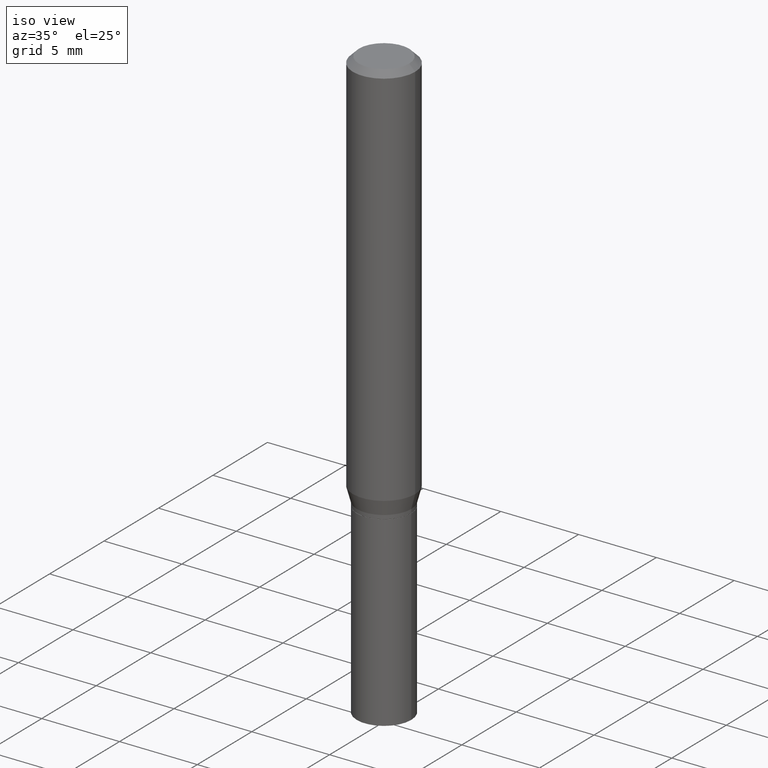
[diagram: clean part render]
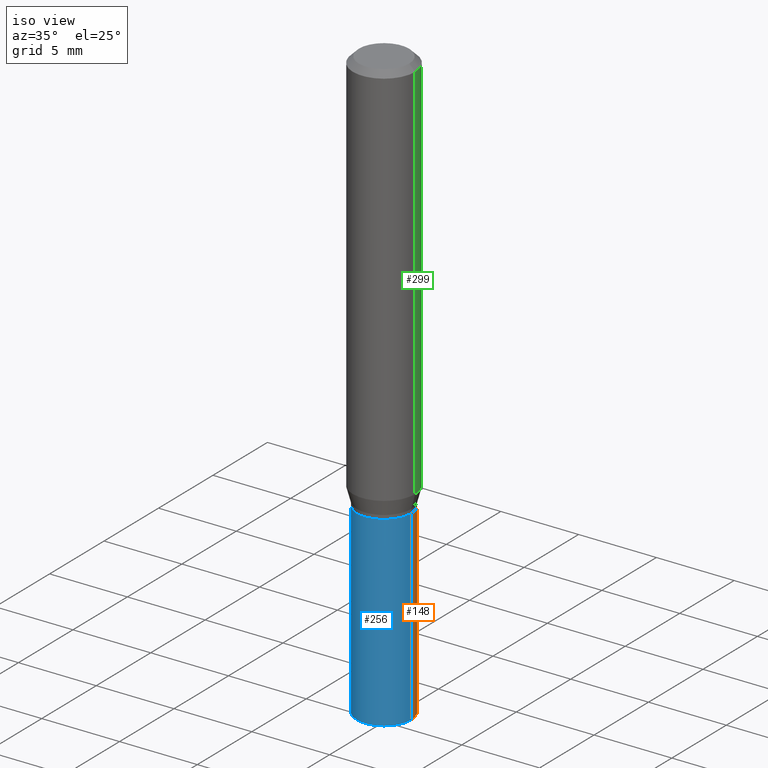
[diagram: same view with three faces highlighted in distinct colors, each labeled with its STEP entity id]
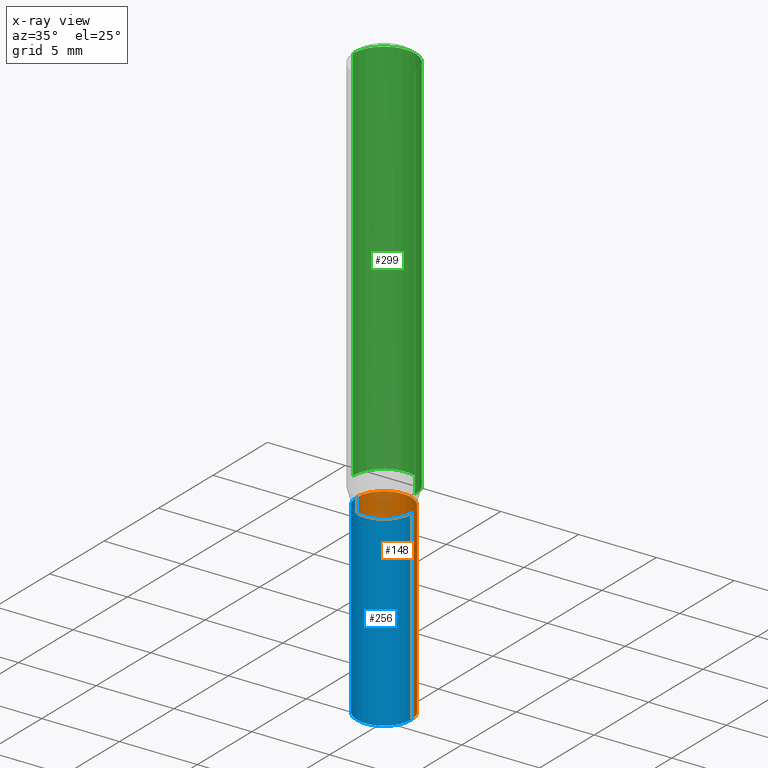
[diagram: x-ray of the same camera — body ghosted, the three highlighted faces saturated]
A machine part, iso view with three faces highlighted in distinct colors.
The next image is the same camera in x-ray (body ghosted, the three faces saturated) — at least one of them is partly hidden behind the body in this view.
Their STEP definitions:

[orange] entity #148 — the highlighted cylindrical surface (edge-blend (fillet) strip) has radius 1.7501 mm, axis along (-0, 0, 1).
#8 = VECTOR ( 'NONE', #230, 39.37007874015748143 ) ;
#9 = DIRECTION ( 'NONE',  ( 1.000000000000000000, -6.982962677686265922E-15, 0.000000000000000000 ) ) ;
#11 = ORIENTED_EDGE ( 'NONE', *, *, #125, .T. ) ;
#24 = CARTESIAN_POINT ( 'NONE',  ( 2.512963745235846570E-29, -3.587846223795216918E-15, -1.027600000000000069 ) ) ;
#47 = EDGE_CURVE ( 'NONE', #321, #249, #325, .T. ) ;
#51 = DIRECTION ( 'NONE',  ( 1.000000000000000000, -6.982962677686265922E-15, 0.000000000000000000 ) ) ;
#52 = EDGE_CURVE ( 'NONE', #321, #301, #329, .T. ) ;
#55 = DIRECTION ( 'NONE',  ( -2.445468806185136597E-29, 3.491481338843145583E-15, 1.000000000000000000 ) ) ;
#79 = CIRCLE ( 'NONE', #461, 0.06890000000000000291 ) ;
#83 = EDGE_CURVE ( 'NONE', #301, #261, #79, .T. ) ;
#100 = ORIENTED_EDGE ( 'NONE', *, *, #83, .F. ) ;
#109 = CARTESIAN_POINT ( 'NONE',  ( -0.06890000000000000291, -3.922970171091258795E-15, -1.027600000000000069 ) ) ;
#120 = CARTESIAN_POINT ( 'NONE',  ( 0.06890000000000000291, -4.811261284925838371E-16, 3.359685798523399969E-30 ) ) ;
#125 = EDGE_CURVE ( 'NONE', #249, #261, #389, .T. ) ;
#143 = ORIENTED_EDGE ( 'NONE', *, *, #52, .F. ) ;
#147 = VECTOR ( 'NONE', #270, 39.37007874015748143 ) ;
#148 = ADVANCED_FACE ( 'NONE', ( #197 ), #311, .T. ) ;
#197 = FACE_OUTER_BOUND ( 'NONE', #241, .T. ) ;
#203 = AXIS2_PLACEMENT_3D ( 'NONE', #290, #332, #9 ) ;
#226 = AXIS2_PLACEMENT_3D ( 'NONE', #349, #459, #268 ) ;
#230 = DIRECTION ( 'NONE',  ( -2.445468806185136877E-29, 3.491481338843145188E-15, 1.000000000000000000 ) ) ;
#241 = EDGE_LOOP ( 'NONE', ( #390, #11, #100, #143 ) ) ;
#249 = VERTEX_POINT ( 'NONE', #402 ) ;
#261 = VERTEX_POINT ( 'NONE', #109 ) ;
#268 = DIRECTION ( 'NONE',  ( 1.000000000000000000, -6.982962677686267499E-15, 4.876176775795935793E-29 ) ) ;
#270 = DIRECTION ( 'NONE',  ( -2.445468806185136877E-29, 3.491481338843145188E-15, 1.000000000000000000 ) ) ;
#290 = CARTESIAN_POINT ( 'NONE',  ( 3.668203209277704895E-29, -5.237222008264718177E-15, -1.500000000000000222 ) ) ;
#295 = CARTESIAN_POINT ( 'NONE',  ( 0.06890000000000000291, -4.068972352287800657E-15, -1.027600000000000069 ) ) ;
#301 = VERTEX_POINT ( 'NONE', #295 ) ;
#309 = CARTESIAN_POINT ( 'NONE',  ( -0.06890000000000000291, 4.895639449387090487E-16, -3.389146277185630017E-30 ) ) ;
#311 = CYLINDRICAL_SURFACE ( 'NONE', #226, 0.06890000000000000291 ) ;
#321 = VERTEX_POINT ( 'NONE', #404 ) ;
#325 = CIRCLE ( 'NONE', #203, 0.06890000000000000291 ) ;
#329 = LINE ( 'NONE', #120, #147 ) ;
#332 = DIRECTION ( 'NONE',  ( -2.445468806185136597E-29, 3.491481338843145583E-15, 1.000000000000000000 ) ) ;
#349 = CARTESIAN_POINT ( 'NONE',  ( 0.000000000000000000, 0.000000000000000000, 0.000000000000000000 ) ) ;
#389 = LINE ( 'NONE', #309, #8 ) ;
#390 = ORIENTED_EDGE ( 'NONE', *, *, #47, .T. ) ;
#402 = CARTESIAN_POINT ( 'NONE',  ( -0.06890000000000000291, -3.922970171091258795E-15, -1.500000000000000222 ) ) ;
#404 = CARTESIAN_POINT ( 'NONE',  ( 0.06890000000000000291, -5.718348136757302704E-15, -1.500000000000000222 ) ) ;
#459 = DIRECTION ( 'NONE',  ( -2.445468806185136597E-29, 3.491481338843145583E-15, 1.000000000000000000 ) ) ;
#461 = AXIS2_PLACEMENT_3D ( 'NONE', #24, #55, #51 ) ;

[blue] entity #256 — the highlighted cylindrical surface (edge-blend (fillet) strip) has radius 1.7501 mm, axis along (-0, 0, 1).
#8 = VECTOR ( 'NONE', #230, 39.37007874015748143 ) ;
#14 = DIRECTION ( 'NONE',  ( -2.445468806185136597E-29, 3.491481338843145583E-15, 1.000000000000000000 ) ) ;
#52 = EDGE_CURVE ( 'NONE', #321, #301, #329, .T. ) ;
#71 = CYLINDRICAL_SURFACE ( 'NONE', #98, 0.06890000000000000291 ) ;
#98 = AXIS2_PLACEMENT_3D ( 'NONE', #365, #145, #292 ) ;
#107 = AXIS2_PLACEMENT_3D ( 'NONE', #215, #14, #370 ) ;
#109 = CARTESIAN_POINT ( 'NONE',  ( -0.06890000000000000291, -3.922970171091258795E-15, -1.027600000000000069 ) ) ;
#120 = CARTESIAN_POINT ( 'NONE',  ( 0.06890000000000000291, -4.811261284925838371E-16, 3.359685798523399969E-30 ) ) ;
#125 = EDGE_CURVE ( 'NONE', #249, #261, #389, .T. ) ;
#145 = DIRECTION ( 'NONE',  ( -2.445468806185136597E-29, 3.491481338843145583E-15, 1.000000000000000000 ) ) ;
#147 = VECTOR ( 'NONE', #270, 39.37007874015748143 ) ;
#155 = CARTESIAN_POINT ( 'NONE',  ( 3.668203209277704895E-29, -5.237222008264718177E-15, -1.500000000000000222 ) ) ;
#161 = AXIS2_PLACEMENT_3D ( 'NONE', #155, #339, #449 ) ;
#187 = EDGE_LOOP ( 'NONE', ( #441, #205, #448, #424 ) ) ;
#205 = ORIENTED_EDGE ( 'NONE', *, *, #281, .T. ) ;
#210 = CIRCLE ( 'NONE', #107, 0.06890000000000000291 ) ;
#215 = CARTESIAN_POINT ( 'NONE',  ( 2.512963745235846570E-29, -3.587846223795216918E-15, -1.027600000000000069 ) ) ;
#230 = DIRECTION ( 'NONE',  ( -2.445468806185136877E-29, 3.491481338843145188E-15, 1.000000000000000000 ) ) ;
#249 = VERTEX_POINT ( 'NONE', #402 ) ;
#256 = ADVANCED_FACE ( 'NONE', ( #340 ), #71, .T. ) ;
#261 = VERTEX_POINT ( 'NONE', #109 ) ;
#270 = DIRECTION ( 'NONE',  ( -2.445468806185136877E-29, 3.491481338843145188E-15, 1.000000000000000000 ) ) ;
#281 = EDGE_CURVE ( 'NONE', #249, #321, #423, .T. ) ;
#292 = DIRECTION ( 'NONE',  ( 1.000000000000000000, -6.982962677686267499E-15, 4.876176775795935793E-29 ) ) ;
#295 = CARTESIAN_POINT ( 'NONE',  ( 0.06890000000000000291, -4.068972352287800657E-15, -1.027600000000000069 ) ) ;
#301 = VERTEX_POINT ( 'NONE', #295 ) ;
#309 = CARTESIAN_POINT ( 'NONE',  ( -0.06890000000000000291, 4.895639449387090487E-16, -3.389146277185630017E-30 ) ) ;
#321 = VERTEX_POINT ( 'NONE', #404 ) ;
#329 = LINE ( 'NONE', #120, #147 ) ;
#339 = DIRECTION ( 'NONE',  ( -2.445468806185136597E-29, 3.491481338843145583E-15, 1.000000000000000000 ) ) ;
#340 = FACE_OUTER_BOUND ( 'NONE', #187, .T. ) ;
#365 = CARTESIAN_POINT ( 'NONE',  ( 0.000000000000000000, 0.000000000000000000, 0.000000000000000000 ) ) ;
#370 = DIRECTION ( 'NONE',  ( 1.000000000000000000, -6.982962677686265922E-15, 0.000000000000000000 ) ) ;
#388 = EDGE_CURVE ( 'NONE', #261, #301, #210, .T. ) ;
#389 = LINE ( 'NONE', #309, #8 ) ;
#402 = CARTESIAN_POINT ( 'NONE',  ( -0.06890000000000000291, -3.922970171091258795E-15, -1.500000000000000222 ) ) ;
#404 = CARTESIAN_POINT ( 'NONE',  ( 0.06890000000000000291, -5.718348136757302704E-15, -1.500000000000000222 ) ) ;
#423 = CIRCLE ( 'NONE', #161, 0.06890000000000000291 ) ;
#424 = ORIENTED_EDGE ( 'NONE', *, *, #388, .F. ) ;
#441 = ORIENTED_EDGE ( 'NONE', *, *, #125, .F. ) ;
#448 = ORIENTED_EDGE ( 'NONE', *, *, #52, .T. ) ;
#449 = DIRECTION ( 'NONE',  ( 1.000000000000000000, -6.982962677686265922E-15, 0.000000000000000000 ) ) ;

[green] entity #299 — the highlighted cylindrical surface (partial cylindrical patch) has radius 2.0003 mm, axis along (-0, 0, 1).
#23 = CARTESIAN_POINT ( 'NONE',  ( -0.07875000000000001443, 5.595524044110789989E-16, -3.873661383575739193E-30 ) ) ;
#70 = CYLINDRICAL_SURFACE ( 'NONE', #360, 0.07875000000000001443 ) ;
#77 = DIRECTION ( 'NONE',  ( 1.000000000000000000, -6.982962677686265922E-15, 0.000000000000000000 ) ) ;
#89 = EDGE_CURVE ( 'NONE', #284, #406, #454, .T. ) ;
#92 = DIRECTION ( 'NONE',  ( -2.445468806185136877E-29, 3.491481338843145188E-15, 1.000000000000000000 ) ) ;
#108 = FACE_OUTER_BOUND ( 'NONE', #324, .T. ) ;
#119 = CARTESIAN_POINT ( 'NONE',  ( 0.07875000000000001443, -3.974490421634703940E-15, -0.9808392995454470187 ) ) ;
#126 = CARTESIAN_POINT ( 'NONE',  ( 0.07875000000000001443, -5.499083108677936415E-16, 3.839989210939299717E-30 ) ) ;
#140 = ORIENTED_EDGE ( 'NONE', *, *, #453, .T. ) ;
#150 = CARTESIAN_POINT ( 'NONE',  ( -0.07875000000000000056, -1.178924761013699443E-15, -0.01499999999999999944 ) ) ;
#151 = ORIENTED_EDGE ( 'NONE', *, *, #89, .T. ) ;
#157 = DIRECTION ( 'NONE',  ( -2.445468806185136877E-29, 3.491481338843145188E-15, 1.000000000000000000 ) ) ;
#178 = CARTESIAN_POINT ( 'NONE',  ( 3.668203209277705088E-31, -5.237222008264718399E-17, -0.01499999999999999944 ) ) ;
#184 = DIRECTION ( 'NONE',  ( -2.445468806185136597E-29, 3.491481338843145583E-15, 1.000000000000000000 ) ) ;
#202 = ORIENTED_EDGE ( 'NONE', *, *, #442, .F. ) ;
#218 = DIRECTION ( 'NONE',  ( 1.000000000000000000, -6.982962677686267499E-15, 4.876176775795935232E-29 ) ) ;
#220 = ORIENTED_EDGE ( 'NONE', *, *, #413, .F. ) ;
#231 = DIRECTION ( 'NONE',  ( 1.000000000000000000, -6.982962677686267499E-15, 0.000000000000000000 ) ) ;
#243 = VECTOR ( 'NONE', #92, 39.37007874015748143 ) ;
#254 = CARTESIAN_POINT ( 'NONE',  ( 0.000000000000000000, 0.000000000000000000, 0.000000000000000000 ) ) ;
#257 = AXIS2_PLACEMENT_3D ( 'NONE', #178, #184, #77 ) ;
#262 = DIRECTION ( 'NONE',  ( -2.445468806185136597E-29, 3.491481338843145583E-15, 1.000000000000000000 ) ) ;
#266 = CARTESIAN_POINT ( 'NONE',  ( 2.398611910918870150E-29, -3.424582110766910594E-15, -0.9808392995454470187 ) ) ;
#284 = VERTEX_POINT ( 'NONE', #374 ) ;
#299 = ADVANCED_FACE ( 'NONE', ( #108 ), #70, .T. ) ;
#303 = CIRCLE ( 'NONE', #257, 0.07875000000000000056 ) ;
#305 = CIRCLE ( 'NONE', #376, 0.07875000000000001443 ) ;
#324 = EDGE_LOOP ( 'NONE', ( #140, #151, #220, #202 ) ) ;
#342 = LINE ( 'NONE', #126, #420 ) ;
#360 = AXIS2_PLACEMENT_3D ( 'NONE', #254, #262, #218 ) ;
#363 = VERTEX_POINT ( 'NONE', #409 ) ;
#374 = CARTESIAN_POINT ( 'NONE',  ( -0.07875000000000001443, -2.865029706355831792E-15, -0.9808392995454470187 ) ) ;
#376 = AXIS2_PLACEMENT_3D ( 'NONE', #266, #414, #231 ) ;
#406 = VERTEX_POINT ( 'NONE', #150 ) ;
#409 = CARTESIAN_POINT ( 'NONE',  ( 0.07875000000000000056, -6.022805309504406221E-16, -0.01499999999999999944 ) ) ;
#413 = EDGE_CURVE ( 'NONE', #363, #406, #303, .T. ) ;
#414 = DIRECTION ( 'NONE',  ( -2.445468806185136597E-29, 3.491481338843145583E-15, 1.000000000000000000 ) ) ;
#420 = VECTOR ( 'NONE', #157, 39.37007874015748143 ) ;
#436 = VERTEX_POINT ( 'NONE', #119 ) ;
#442 = EDGE_CURVE ( 'NONE', #436, #363, #342, .T. ) ;
#453 = EDGE_CURVE ( 'NONE', #436, #284, #305, .T. ) ;
#454 = LINE ( 'NONE', #23, #243 ) ;